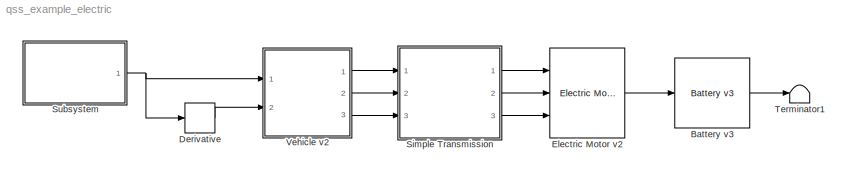
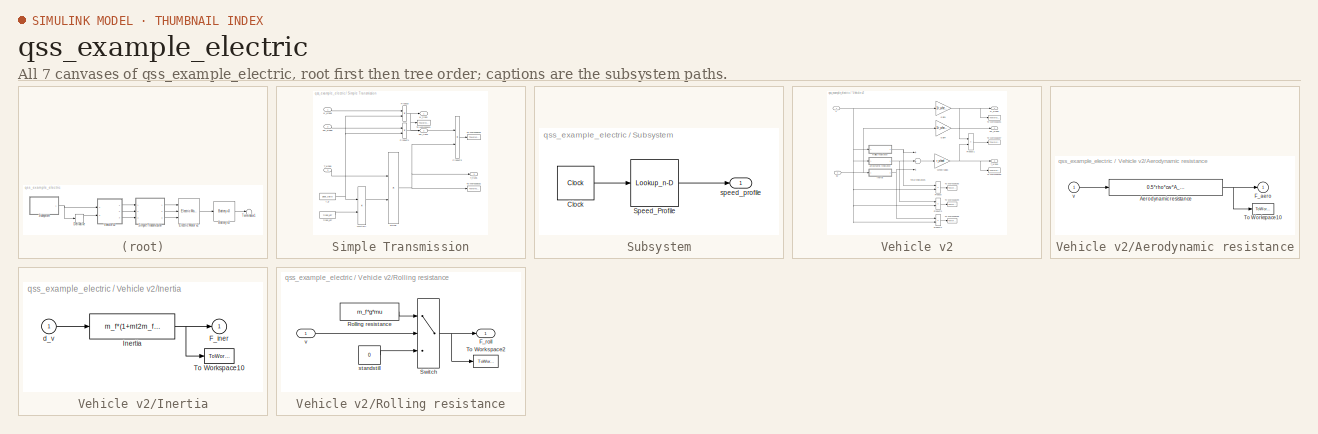
[diagram: thumbnail index - all 7 canvases of the model, root first then tree order]
MODEL qss_example_electric
KIND model
BLOCK [Reference] Battery v3  REF=qss_tb_library_aalto/Energy Buffer/Battery v3  (lib defined in mdl_0a709b6458aa)
  Ports = [1, 1]
  SID = 534
  SourceBlock = qss_tb_library_aalto/Energy Buffer/Battery v3
  SourceType = Battery
  Tag = battery
  cell_parallel_BT = 25
  cell_series_BT = 192
  init_file_BT = battery_file_name
  init_soc_BT = battery_init_soc
BLOCK [Derivative] Derivative
  SID = 541
BLOCK [Reference] Electric Motor v2  REF=qss_tb_library_aalto/Energy Converter/Electric Motor v2  (lib defined in mdl_0a709b6458aa)
  P_aux = P_aux*1000
  Ports = [3, 1]
  SID = 532
  SourceBlock = qss_tb_library_aalto/Energy Converter/Electric Motor v2
  SourceType = Electric Motor
  over_factor = 1.25
  scale_EM = 3.5
  theta_EM = 0.5
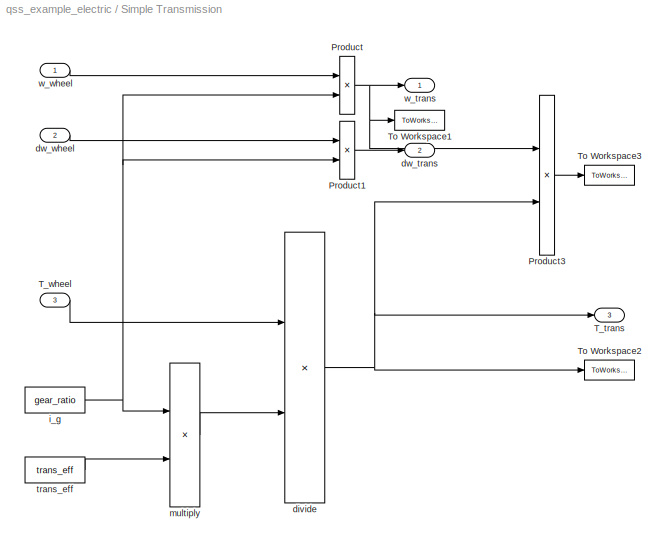
BLOCK [SubSystem] Simple Transmission
  AncestorBlock = qss_tb_library_aalto/Gear System/Simple Transmission
  Ports = [3, 3]
  RequestExecContextInheritance = off
  SID = 530
  Tag = simple transmission
BLOCK [Product] Simple Transmission/Product
  Ports = [2, 1]
  SID = 530:430
BLOCK [Product] Simple Transmission/Product1
  Ports = [2, 1]
  SID = 530:431
BLOCK [Product] Simple Transmission/Product3
  Ports = [2, 1]
  SID = 530:432
BLOCK [Outport] Simple Transmission/T_trans
  IconDisplay = Port number
  InitialOutput = 0
  Port = 3
  SID = 530:438
BLOCK [Inport] Simple Transmission/T_wheel
  IconDisplay = Port number
  Port = 3
  SID = 530:397
BLOCK [ToWorkspace] Simple Transmission/To Workspace1
  MaxDataPoints = inf
  Ports = [1]
  SID = 530:433
  SampleTime = -1
  VariableName = w_trans
BLOCK [ToWorkspace] Simple Transmission/To Workspace2
  MaxDataPoints = inf
  Ports = [1]
  SID = 530:434
  SampleTime = -1
  VariableName = T_trans
BLOCK [ToWorkspace] Simple Transmission/To Workspace3
  MaxDataPoints = inf
  Ports = [1]
  SID = 530:435
  SampleTime = -1
  VariableName = P_trans
BLOCK [Product] Simple Transmission/divide
  InputSameDT = off
  Inputs = */
  OutDataTypeStr = Inherit: Inherit via internal rule
  Ports = [2, 1]
  RndMeth = Floor
  SID = 530:1633
  SaturateOnIntegerOverflow = off
BLOCK [Outport] Simple Transmission/dw_trans
  IconDisplay = Port number
  InitialOutput = 0
  Port = 2
  SID = 530:437
BLOCK [Inport] Simple Transmission/dw_wheel
  IconDisplay = Port number
  Port = 2
  SID = 530:396
BLOCK [Constant] Simple Transmission/i_g
  SID = 530:1634
  Value = gear_ratio
BLOCK [Product] Simple Transmission/multiply
  InputSameDT = off
  Inputs = **
  OutDataTypeStr = Inherit: Inherit via internal rule
  Ports = [2, 1]
  RndMeth = Floor
  SID = 530:1635
  SaturateOnIntegerOverflow = off
BLOCK [Constant] Simple Transmission/trans_eff
  SID = 530:1636
  Value = trans_eff
BLOCK [Outport] Simple Transmission/w_trans
  IconDisplay = Port number
  InitialOutput = 0
  SID = 530:436
BLOCK [Inport] Simple Transmission/w_wheel
  IconDisplay = Port number
  SID = 530:395
BLOCK [SubSystem] Subsystem
  Ports = [0, 1]
  RequestExecContextInheritance = off
  SID = 537
BLOCK [Clock] Subsystem/Clock
  SID = 538
BLOCK [Lookup_n-D] Subsystem/Speed_Profile
  BreakpointsForDimension1 = [0:1923]
  BreakpointsSpecification = Even spacing
  InternalRulePriority = Speed
  NumberOfTableDimensions = 1
  Ports = [1, 1]
  RndMeth = Simplest
  SID = 539
  Table = speed_m_s
BLOCK [Outport] Subsystem/speed_profile
  IconDisplay = Port number
  SID = 540
BLOCK [Terminator] Terminator1
  SID = 470
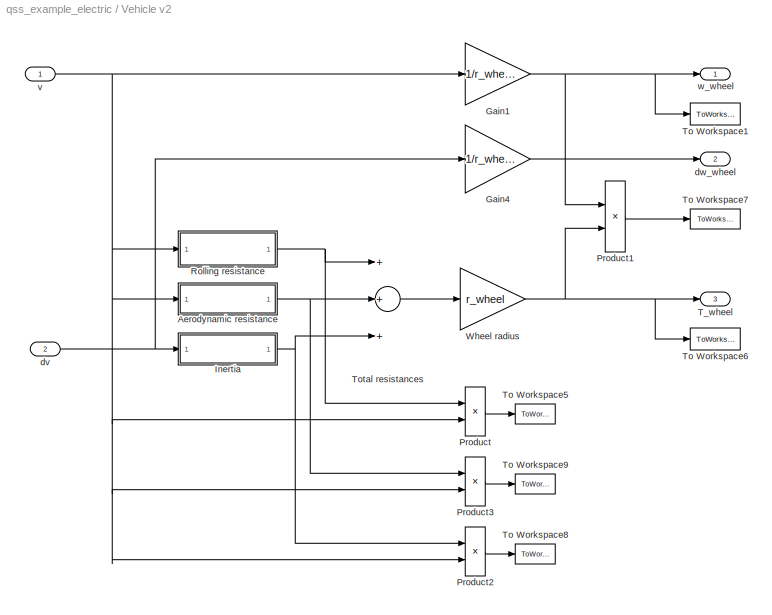
BLOCK [SubSystem] Vehicle v2
  AncestorBlock = qss_tb_library_aalto/Vehicle/Vehicle v2
  Ports = [2, 3]
  RequestExecContextInheritance = off
  SID = 531
  Tag = vehicle
BLOCK [SubSystem] Vehicle v2/Aerodynamic resistance
  Ports = [1, 1]
  RequestExecContextInheritance = off
  SID = 531:845
BLOCK [Fcn] Vehicle v2/Aerodynamic resistance/Aerodynamic resistance
  Expr = 0.5*rho*cw*A_f*u^2
  SID = 531:847
BLOCK [Outport] Vehicle v2/Aerodynamic resistance/F_aero
  IconDisplay = Port number
  InitialOutput = 0
  SID = 531:849
BLOCK [ToWorkspace] Vehicle v2/Aerodynamic resistance/To Workspace10
  MaxDataPoints = inf
  Ports = [1]
  SID = 531:848
  SampleTime = -1
  VariableName = F_aero
BLOCK [Inport] Vehicle v2/Aerodynamic resistance/v
  IconDisplay = Port number
  SID = 531:846
BLOCK [Gain] Vehicle v2/Gain1
  Gain = 1/r_wheel
  SID = 531:856
BLOCK [Gain] Vehicle v2/Gain4
  Gain = 1/r_wheel
  SID = 531:857
BLOCK [SubSystem] Vehicle v2/Inertia
  Ports = [1, 1]
  RequestExecContextInheritance = off
  SID = 531:858
BLOCK [Outport] Vehicle v2/Inertia/F_iner
  IconDisplay = Port number
  InitialOutput = 0
  SID = 531:862
BLOCK [Fcn] Vehicle v2/Inertia/Inertia
  Expr = m_f*(1+mt2m_f)*u/h
  SID = 531:860
BLOCK [ToWorkspace] Vehicle v2/Inertia/To Workspace10
  MaxDataPoints = inf
  Ports = [1]
  SID = 531:861
  SampleTime = -1
  VariableName = F_iner
BLOCK [Inport] Vehicle v2/Inertia/d_v
  IconDisplay = Port number
  SID = 531:859
BLOCK [Product] Vehicle v2/Product
  Ports = [2, 1]
  SID = 531:863
BLOCK [Product] Vehicle v2/Product1
  Ports = [2, 1]
  SID = 531:864
BLOCK [Product] Vehicle v2/Product2
  Ports = [2, 1]
  SID = 531:865
BLOCK [Product] Vehicle v2/Product3
  Ports = [2, 1]
  SID = 531:866
BLOCK [SubSystem] Vehicle v2/Rolling resistance
  Ports = [1, 1]
  RequestExecContextInheritance = off
  SID = 531:867
BLOCK [Outport] Vehicle v2/Rolling resistance/F_roll
  IconDisplay = Port number
  SID = 531:873
BLOCK [Constant] Vehicle v2/Rolling resistance/Rolling resistance
  SID = 531:869
  Value = m_f*g*mu
BLOCK [Switch] Vehicle v2/Rolling resistance/Switch
  Criteria = u2 > Threshold
  InputSameDT = off
  SID = 531:870
  SaturateOnIntegerOverflow = off
  Threshold = eps
BLOCK [ToWorkspace] Vehicle v2/Rolling resistance/To Workspace2
  MaxDataPoints = inf
  Ports = [1]
  SID = 531:871
  SampleTime = -1
  VariableName = F_roll
BLOCK [Constant] Vehicle v2/Rolling resistance/standstill
  SID = 531:872
  Value = 0
BLOCK [Inport] Vehicle v2/Rolling resistance/v
  IconDisplay = Port number
  SID = 531:868
BLOCK [Outport] Vehicle v2/T_wheel
  IconDisplay = Port number
  InitialOutput = 0
  Port = 3
  SID = 531:884
BLOCK [ToWorkspace] Vehicle v2/To Workspace1
  MaxDataPoints = inf
  Ports = [1]
  SID = 531:874
  SampleTime = -1
  VariableName = w_wheel
BLOCK [ToWorkspace] Vehicle v2/To Workspace5
  MaxDataPoints = inf
  Ports = [1]
  SID = 531:875
  SampleTime = -1
  VariableName = P_roll
BLOCK [ToWorkspace] Vehicle v2/To Workspace6
  MaxDataPoints = inf
  Ports = [1]
  SID = 531:876
  SampleTime = -1
  VariableName = T_wheel
BLOCK [ToWorkspace] Vehicle v2/To Workspace7
  MaxDataPoints = inf
  Ports = [1]
  SID = 531:877
  SampleTime = -1
  VariableName = P_wheel
BLOCK [ToWorkspace] Vehicle v2/To Workspace8
  MaxDataPoints = inf
  Ports = [1]
  SID = 531:878
  SampleTime = -1
  VariableName = P_iner
BLOCK [ToWorkspace] Vehicle v2/To Workspace9
  MaxDataPoints = inf
  Ports = [1]
  SID = 531:879
  SampleTime = -1
  VariableName = P_aero
BLOCK [Sum] Vehicle v2/Total resistances
  Inputs = +++
  Ports = [3, 1]
  SID = 531:880
BLOCK [Gain] Vehicle v2/Wheel radius
  Gain = r_wheel
  SID = 531:881
BLOCK [Inport] Vehicle v2/dv
  IconDisplay = Port number
  Port = 2
  SID = 531:844
BLOCK [Outport] Vehicle v2/dw_wheel
  IconDisplay = Port number
  InitialOutput = 0
  Port = 2
  SID = 531:883
BLOCK [Inport] Vehicle v2/v
  IconDisplay = Port number
  SID = 531:843
BLOCK [Outport] Vehicle v2/w_wheel
  IconDisplay = Port number
  InitialOutput = 0
  SID = 531:882
LINE Battery v3:1 -> Terminator1:1
LINE Derivative:1 -> Vehicle v2:2
LINE Electric Motor v2:1 -> Battery v3:1
LINE Simple Transmission/Product1:1 -> Simple Transmission/dw_trans:1
LINE Simple Transmission/Product3:1 -> Simple Transmission/To Workspace3:1
NET Simple Transmission/Product:1 -> Simple Transmission/Product3:1, Simple Transmission/To Workspace1:1, Simple Transmission/w_trans:1
LINE Simple Transmission/T_wheel:1 -> Simple Transmission/divide:1
NET Simple Transmission/divide:1 -> Simple Transmission/Product3:2, Simple Transmission/T_trans:1, Simple Transmission/To Workspace2:1
LINE Simple Transmission/dw_wheel:1 -> Simple Transmission/Product1:1
NET Simple Transmission/i_g:1 -> Simple Transmission/Product1:2, Simple Transmission/Product:2, Simple Transmission/multiply:1
LINE Simple Transmission/multiply:1 -> Simple Transmission/divide:2
LINE Simple Transmission/trans_eff:1 -> Simple Transmission/multiply:2
LINE Simple Transmission/w_wheel:1 -> Simple Transmission/Product:1
LINE Simple Transmission:1 -> Electric Motor v2:1
LINE Simple Transmission:2 -> Electric Motor v2:2
LINE Simple Transmission:3 -> Electric Motor v2:3
LINE Subsystem/Clock:1 -> Subsystem/Speed_Profile:1
LINE Subsystem/Speed_Profile:1 -> Subsystem/speed_profile:1
NET Subsystem:1 -> Derivative:1, Vehicle v2:1
NET Vehicle v2/Aerodynamic resistance/Aerodynamic resistance:1 -> Vehicle v2/Aerodynamic resistance/F_aero:1, Vehicle v2/Aerodynamic resistance/To Workspace10:1
LINE Vehicle v2/Aerodynamic resistance/v:1 -> Vehicle v2/Aerodynamic resistance/Aerodynamic resistance:1
NET Vehicle v2/Aerodynamic resistance:1 -> Vehicle v2/Product3:1, Vehicle v2/Total resistances:2
NET Vehicle v2/Gain1:1 -> Vehicle v2/Product1:1, Vehicle v2/To Workspace1:1, Vehicle v2/w_wheel:1
LINE Vehicle v2/Gain4:1 -> Vehicle v2/dw_wheel:1
NET Vehicle v2/Inertia/Inertia:1 -> Vehicle v2/Inertia/F_iner:1, Vehicle v2/Inertia/To Workspace10:1
LINE Vehicle v2/Inertia/d_v:1 -> Vehicle v2/Inertia/Inertia:1
NET Vehicle v2/Inertia:1 -> Vehicle v2/Product2:1, Vehicle v2/Total resistances:3
LINE Vehicle v2/Product1:1 -> Vehicle v2/To Workspace7:1
LINE Vehicle v2/Product2:1 -> Vehicle v2/To Workspace8:1
LINE Vehicle v2/Product3:1 -> Vehicle v2/To Workspace9:1
LINE Vehicle v2/Product:1 -> Vehicle v2/To Workspace5:1
LINE Vehicle v2/Rolling resistance/Rolling resistance:1 -> Vehicle v2/Rolling resistance/Switch:1
NET Vehicle v2/Rolling resistance/Switch:1 -> Vehicle v2/Rolling resistance/F_roll:1, Vehicle v2/Rolling resistance/To Workspace2:1
LINE Vehicle v2/Rolling resistance/standstill:1 -> Vehicle v2/Rolling resistance/Switch:3
LINE Vehicle v2/Rolling resistance/v:1 -> Vehicle v2/Rolling resistance/Switch:2
NET Vehicle v2/Rolling resistance:1 -> Vehicle v2/Product:1, Vehicle v2/Total resistances:1
LINE Vehicle v2/Total resistances:1 -> Vehicle v2/Wheel radius:1
NET Vehicle v2/Wheel radius:1 -> Vehicle v2/Product1:2, Vehicle v2/T_wheel:1, Vehicle v2/To Workspace6:1
NET Vehicle v2/dv:1 -> Vehicle v2/Gain4:1, Vehicle v2/Inertia:1
NET Vehicle v2/v:1 -> Vehicle v2/Aerodynamic resistance:1, Vehicle v2/Gain1:1, Vehicle v2/Product2:2, Vehicle v2/Product3:2, Vehicle v2/Product:2, Vehicle v2/Rolling resistance:1
LINE Vehicle v2:1 -> Simple Transmission:1
LINE Vehicle v2:2 -> Simple Transmission:2
LINE Vehicle v2:3 -> Simple Transmission:3
note: NET lines group one-source signal fan-out (src -> all destinations, sorted); 1:1 wires keep LINE
